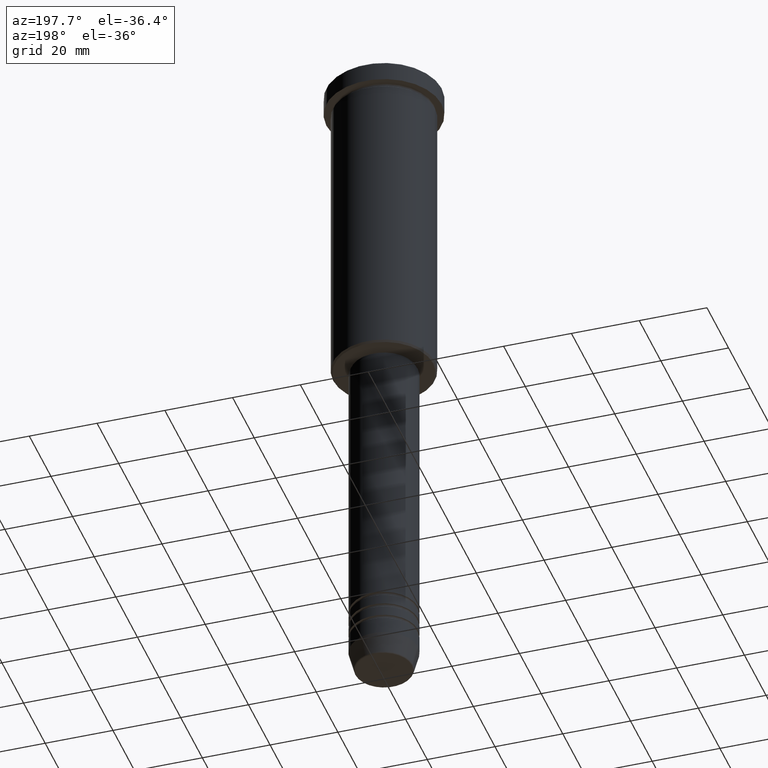
[diagram: clean part render]
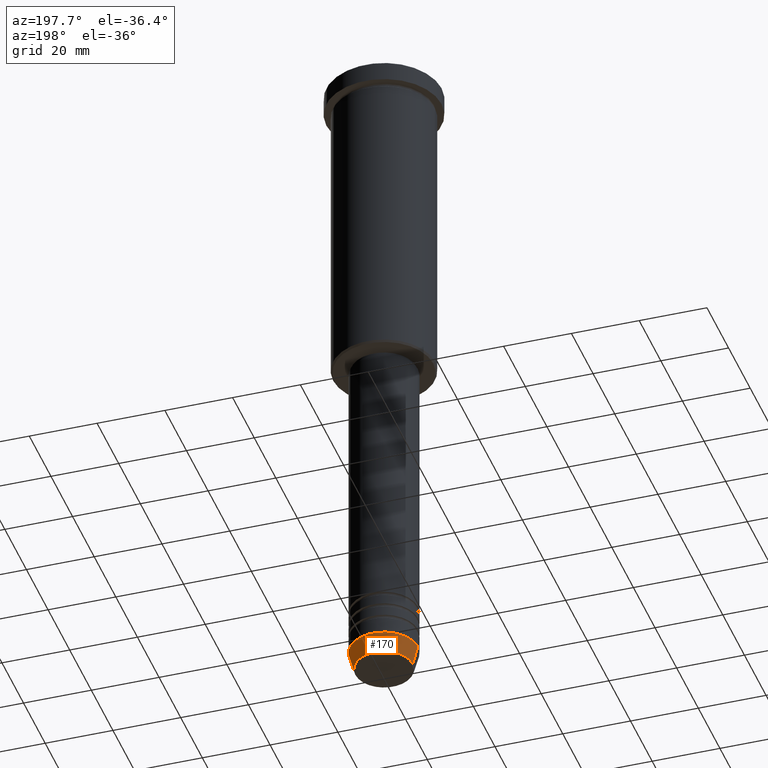
[diagram: same view with one face highlighted and labeled with its STEP entity id]
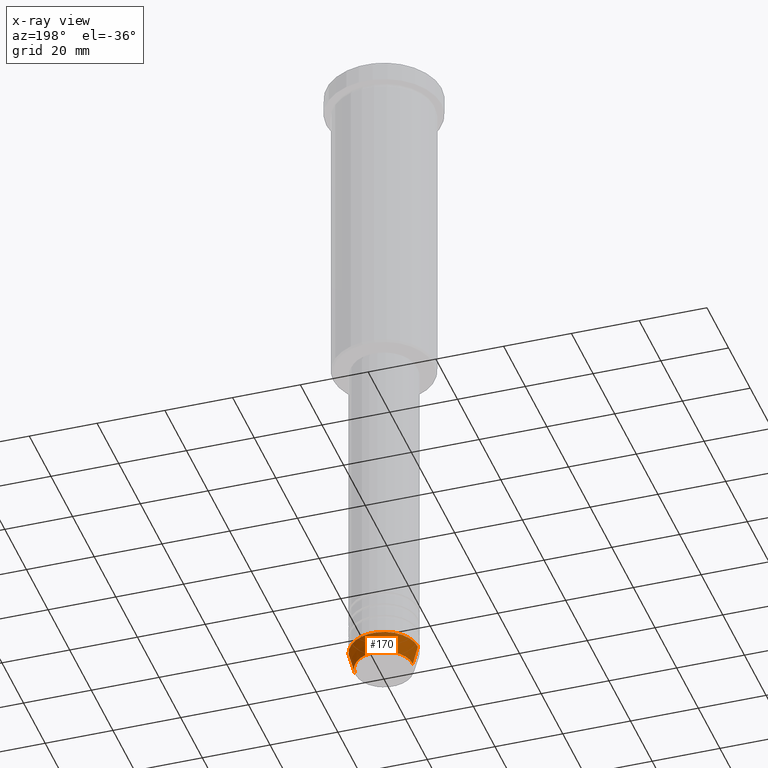
[diagram: x-ray of the same camera — body ghosted, the highlighted face saturated]
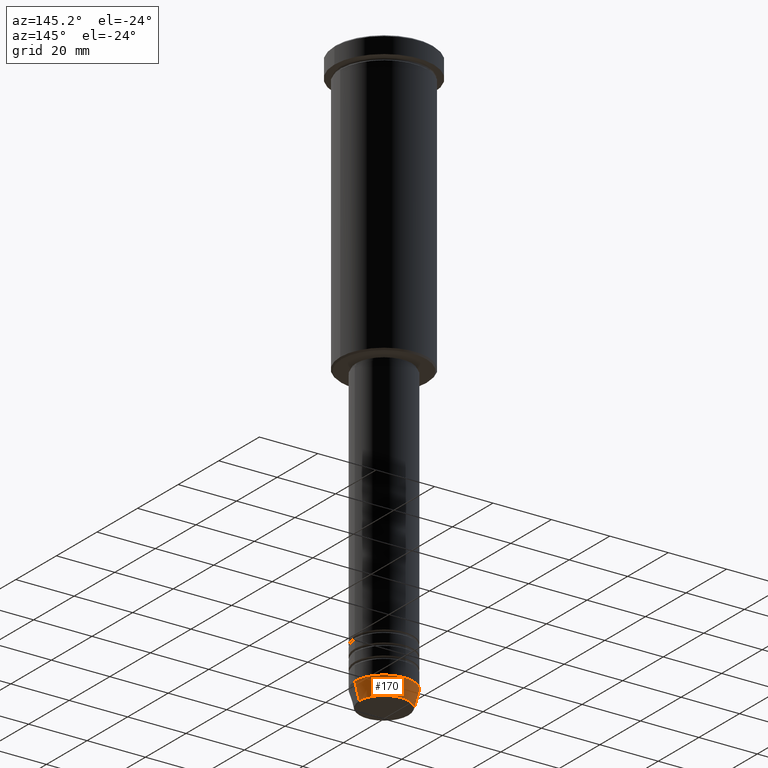
[diagram: same view with one face highlighted and labeled with its STEP entity id]
A machine part, auxiliary view. The second image highlights one B-rep face of the part: STEP entity #170.
The next image is the same camera in x-ray: the body ghosted, the highlighted face saturated — about 0% of this face is hidden behind the body in this view.
A second angle (auxiliary view) of the same face is appended — the face is thin or edge-on in the first view.
In plain terms, the highlighted conical surface has half-angle 15 deg.
Its self-contained STEP definition (entity closure, byte-faithful):
#1 = VECTOR ( 'NONE', #378, 1000.000000000000000 ) ;
#3 = VERTEX_POINT ( 'NONE', #43 ) ;
#43 = CARTESIAN_POINT ( 'NONE',  ( 8.491604264568326954, 0.000000000000000000, -199.6294095225512706 ) ) ;
#86 = ORIENTED_EDGE ( 'NONE', *, *, #417, .F. ) ;
#90 = EDGE_LOOP ( 'NONE', ( #125, #298, #86, #726 ) ) ;
#125 = ORIENTED_EDGE ( 'NONE', *, *, #974, .T. ) ;
#146 = VERTEX_POINT ( 'NONE', #617 ) ;
#151 = CARTESIAN_POINT ( 'NONE',  ( 0.000000000000000000, 0.000000000000000000, -199.6294095225512706 ) ) ;
#162 = CIRCLE ( 'NONE', #827, 8.491604264568326954 ) ;
#170 = ADVANCED_FACE ( 'NONE', ( #733 ), #406, .T. ) ;
#208 = DIRECTION ( 'NONE',  ( -0.000000000000000000, -0.000000000000000000, 1.000000000000000000 ) ) ;
#231 = VERTEX_POINT ( 'NONE', #375 ) ;
#251 = EDGE_CURVE ( 'NONE', #3, #146, #288, .T. ) ;
#277 = CIRCLE ( 'NONE', #424, 10.00000000000000178 ) ;
#288 = LINE ( 'NONE', #900, #655 ) ;
#298 = ORIENTED_EDGE ( 'NONE', *, *, #343, .T. ) ;
#343 = EDGE_CURVE ( 'NONE', #231, #747, #836, .T. ) ;
#370 = AXIS2_PLACEMENT_3D ( 'NONE', #552, #740, #454 ) ;
#375 = CARTESIAN_POINT ( 'NONE',  ( -8.491604264568326954, 1.132284198685157767E-15, -199.6294095225512706 ) ) ;
#378 = DIRECTION ( 'NONE',  ( -0.2588190451025214611, 3.169619151431773569E-17, 0.9659258262890680902 ) ) ;
#406 = CONICAL_SURFACE ( 'NONE', #370, 10.00000000000000178, 0.2617993877991501850 ) ;
#417 = EDGE_CURVE ( 'NONE', #146, #747, #277, .T. ) ;
#424 = AXIS2_PLACEMENT_3D ( 'NONE', #851, #208, #668 ) ;
#429 = DIRECTION ( 'NONE',  ( 1.000000000000000000, 0.000000000000000000, 0.000000000000000000 ) ) ;
#454 = DIRECTION ( 'NONE',  ( 1.000000000000000000, 0.000000000000000000, 0.000000000000000000 ) ) ;
#552 = CARTESIAN_POINT ( 'NONE',  ( 0.000000000000000000, 0.000000000000000000, -194.0000000000000284 ) ) ;
#590 = DIRECTION ( 'NONE',  ( -0.000000000000000000, -0.000000000000000000, 1.000000000000000000 ) ) ;
#617 = CARTESIAN_POINT ( 'NONE',  ( 10.00000000000000178, 0.000000000000000000, -194.0000000000000284 ) ) ;
#655 = VECTOR ( 'NONE', #801, 1000.000000000000000 ) ;
#668 = DIRECTION ( 'NONE',  ( 1.000000000000000000, 0.000000000000000000, 0.000000000000000000 ) ) ;
#724 = CARTESIAN_POINT ( 'NONE',  ( -10.00000000000000178, 1.224646799147353454E-15, -194.0000000000000284 ) ) ;
#726 = ORIENTED_EDGE ( 'NONE', *, *, #251, .F. ) ;
#733 = FACE_OUTER_BOUND ( 'NONE', #90, .T. ) ;
#740 = DIRECTION ( 'NONE',  ( -0.000000000000000000, -0.000000000000000000, 1.000000000000000000 ) ) ;
#747 = VERTEX_POINT ( 'NONE', #724 ) ;
#765 = CARTESIAN_POINT ( 'NONE',  ( -10.00000000000000178, 1.224646799147353454E-15, -194.0000000000000284 ) ) ;
#801 = DIRECTION ( 'NONE',  ( 0.2588190451025214611, 0.000000000000000000, 0.9659258262890680902 ) ) ;
#827 = AXIS2_PLACEMENT_3D ( 'NONE', #151, #590, #429 ) ;
#836 = LINE ( 'NONE', #765, #1 ) ;
#851 = CARTESIAN_POINT ( 'NONE',  ( 0.000000000000000000, 0.000000000000000000, -194.0000000000000284 ) ) ;
#900 = CARTESIAN_POINT ( 'NONE',  ( 10.00000000000000178, 0.000000000000000000, -194.0000000000000284 ) ) ;
#974 = EDGE_CURVE ( 'NONE', #3, #231, #162, .T. ) ;